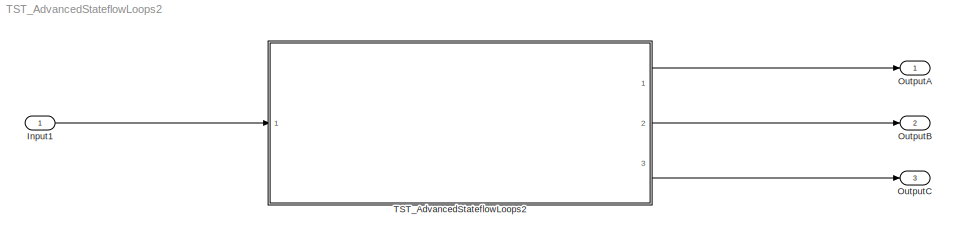
MODEL TST_AdvancedStateflowLoops2
KIND model
BLOCK [Inport] Input1
  BusOutputAsStruct = on
  IconDisplay = Port number
  OutDataTypeStr = uint32
  SID = 23
BLOCK [Outport] OutputA
  IconDisplay = Port number
  OutDataTypeStr = double
  PortDimensions = 1
  SID = 25
BLOCK [Outport] OutputB
  IconDisplay = Port number
  OutDataTypeStr = double
  Port = 2
  PortDimensions = 1
  SID = 32
BLOCK [Outport] OutputC
  IconDisplay = Port number
  OutDataTypeStr = double
  Port = 3
  PortDimensions = 1
  SID = 37
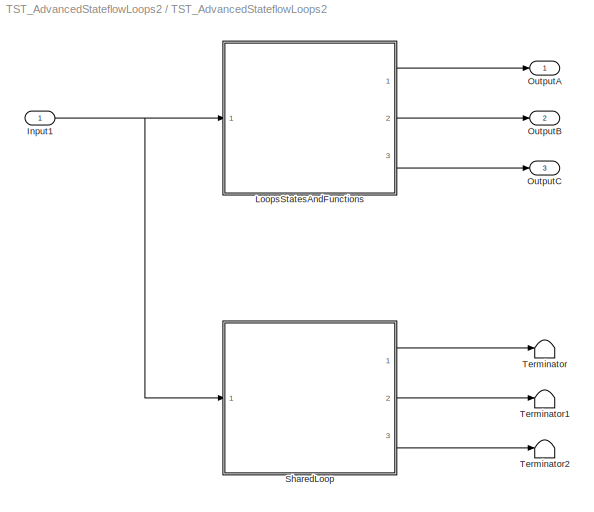
BLOCK [SubSystem] TST_AdvancedStateflowLoops2
  Ports = [1, 3]
  RequestExecContextInheritance = off
  SID = 2
  TreatAsAtomicUnit = on
BLOCK [Inport] TST_AdvancedStateflowLoops2/Input1
  BusOutputAsStruct = on
  IconDisplay = Port number
  OutDataTypeStr = uint32
  SID = 39
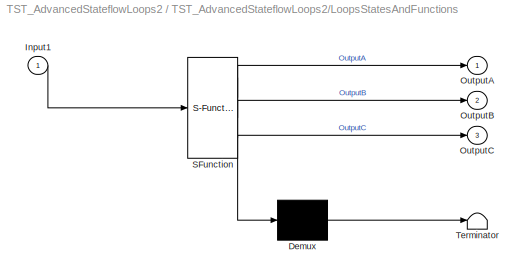
BLOCK [SubSystem] TST_AdvancedStateflowLoops2/LoopsStatesAndFunctions
  ErrorFcn = Stateflow.Translate.translate
  PermitHierarchicalResolution = ExplicitOnly
  Ports = [1, 3]
  RequestExecContextInheritance = off
  SFBlockType = Chart
  SID = 43
  TreatAsAtomicUnit = on
BLOCK [Demux] TST_AdvancedStateflowLoops2/LoopsStatesAndFunctions/ Demux 
  Outputs = 1
  Ports = [1, 1]
  SID = 43::14
BLOCK [S-Function] TST_AdvancedStateflowLoops2/LoopsStatesAndFunctions/ SFunction 
  EnableBusSupport = off
  FunctionName = sf_sfun
  PortCounts = [1 4]
  Ports = [1, 4]
  SFcnIsStateOwnerBlock = off
  SFunctionDeploymentMode = off
  SID = 43::13
  Tag = Stateflow S-Function 1
BLOCK [Terminator] TST_AdvancedStateflowLoops2/LoopsStatesAndFunctions/ Terminator 
  SID = 43::15
BLOCK [Inport] TST_AdvancedStateflowLoops2/LoopsStatesAndFunctions/Input1
  IconDisplay = Port number
  SID = 43::9
BLOCK [Outport] TST_AdvancedStateflowLoops2/LoopsStatesAndFunctions/OutputA
  IconDisplay = Port number
  SID = 43::10
BLOCK [Outport] TST_AdvancedStateflowLoops2/LoopsStatesAndFunctions/OutputB
  IconDisplay = Port number
  Port = 2
  SID = 43::11
BLOCK [Outport] TST_AdvancedStateflowLoops2/LoopsStatesAndFunctions/OutputC
  IconDisplay = Port number
  Port = 3
  SID = 43::12
BLOCK [Outport] TST_AdvancedStateflowLoops2/OutputA
  IconDisplay = Port number
  OutDataTypeStr = double
  PortDimensions = 1
  SID = 40
BLOCK [Outport] TST_AdvancedStateflowLoops2/OutputB
  IconDisplay = Port number
  OutDataTypeStr = double
  Port = 2
  PortDimensions = 1
  SID = 41
BLOCK [Outport] TST_AdvancedStateflowLoops2/OutputC
  IconDisplay = Port number
  OutDataTypeStr = double
  Port = 3
  PortDimensions = 1
  SID = 42
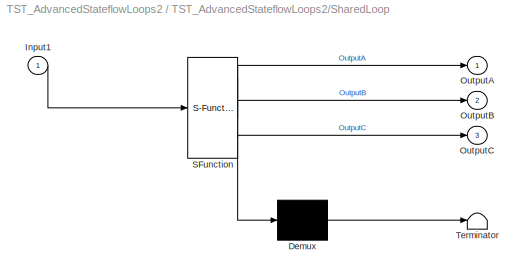
BLOCK [SubSystem] TST_AdvancedStateflowLoops2/SharedLoop
  ErrorFcn = Stateflow.Translate.translate
  PermitHierarchicalResolution = ExplicitOnly
  Ports = [1, 3]
  RequestExecContextInheritance = off
  SFBlockType = Chart
  SID = 48
  TreatAsAtomicUnit = on
BLOCK [Demux] TST_AdvancedStateflowLoops2/SharedLoop/ Demux 
  Outputs = 1
  Ports = [1, 1]
  SID = 48::14
BLOCK [S-Function] TST_AdvancedStateflowLoops2/SharedLoop/ SFunction 
  EnableBusSupport = off
  FunctionName = sf_sfun
  PortCounts = [1 4]
  Ports = [1, 4]
  SFcnIsStateOwnerBlock = off
  SFunctionDeploymentMode = off
  SID = 48::13
  Tag = Stateflow S-Function 2
BLOCK [Terminator] TST_AdvancedStateflowLoops2/SharedLoop/ Terminator 
  SID = 48::15
BLOCK [Inport] TST_AdvancedStateflowLoops2/SharedLoop/Input1
  IconDisplay = Port number
  SID = 48::9
BLOCK [Outport] TST_AdvancedStateflowLoops2/SharedLoop/OutputA
  IconDisplay = Port number
  SID = 48::10
BLOCK [Outport] TST_AdvancedStateflowLoops2/SharedLoop/OutputB
  IconDisplay = Port number
  Port = 2
  SID = 48::11
BLOCK [Outport] TST_AdvancedStateflowLoops2/SharedLoop/OutputC
  IconDisplay = Port number
  Port = 3
  SID = 48::12
BLOCK [Terminator] TST_AdvancedStateflowLoops2/Terminator
  SID = 49
BLOCK [Terminator] TST_AdvancedStateflowLoops2/Terminator1
  SID = 50
BLOCK [Terminator] TST_AdvancedStateflowLoops2/Terminator2
  SID = 51
LINE Input1:1 -> TST_AdvancedStateflowLoops2:1
NET TST_AdvancedStateflowLoops2/Input1:1 -> TST_AdvancedStateflowLoops2/LoopsStatesAndFunctions:1, TST_AdvancedStateflowLoops2/SharedLoop:1
LINE TST_AdvancedStateflowLoops2/LoopsStatesAndFunctions/ Demux :1 -> TST_AdvancedStateflowLoops2/LoopsStatesAndFunctions/ Terminator :1
LINE TST_AdvancedStateflowLoops2/LoopsStatesAndFunctions/ SFunction :1 -> TST_AdvancedStateflowLoops2/LoopsStatesAndFunctions/ Demux :1
LINE TST_AdvancedStateflowLoops2/LoopsStatesAndFunctions/ SFunction :2 -> TST_AdvancedStateflowLoops2/LoopsStatesAndFunctions/OutputA:1
LINE TST_AdvancedStateflowLoops2/LoopsStatesAndFunctions/ SFunction :3 -> TST_AdvancedStateflowLoops2/LoopsStatesAndFunctions/OutputB:1
LINE TST_AdvancedStateflowLoops2/LoopsStatesAndFunctions/ SFunction :4 -> TST_AdvancedStateflowLoops2/LoopsStatesAndFunctions/OutputC:1
LINE TST_AdvancedStateflowLoops2/LoopsStatesAndFunctions/Input1:1 -> TST_AdvancedStateflowLoops2/LoopsStatesAndFunctions/ SFunction :1
LINE TST_AdvancedStateflowLoops2/LoopsStatesAndFunctions:1 -> TST_AdvancedStateflowLoops2/OutputA:1
LINE TST_AdvancedStateflowLoops2/LoopsStatesAndFunctions:2 -> TST_AdvancedStateflowLoops2/OutputB:1
LINE TST_AdvancedStateflowLoops2/LoopsStatesAndFunctions:3 -> TST_AdvancedStateflowLoops2/OutputC:1
LINE TST_AdvancedStateflowLoops2/SharedLoop/ Demux :1 -> TST_AdvancedStateflowLoops2/SharedLoop/ Terminator :1
LINE TST_AdvancedStateflowLoops2/SharedLoop/ SFunction :1 -> TST_AdvancedStateflowLoops2/SharedLoop/ Demux :1
LINE TST_AdvancedStateflowLoops2/SharedLoop/ SFunction :2 -> TST_AdvancedStateflowLoops2/SharedLoop/OutputA:1
LINE TST_AdvancedStateflowLoops2/SharedLoop/ SFunction :3 -> TST_AdvancedStateflowLoops2/SharedLoop/OutputB:1
LINE TST_AdvancedStateflowLoops2/SharedLoop/ SFunction :4 -> TST_AdvancedStateflowLoops2/SharedLoop/OutputC:1
LINE TST_AdvancedStateflowLoops2/SharedLoop/Input1:1 -> TST_AdvancedStateflowLoops2/SharedLoop/ SFunction :1
LINE TST_AdvancedStateflowLoops2/SharedLoop:1 -> TST_AdvancedStateflowLoops2/Terminator:1
LINE TST_AdvancedStateflowLoops2/SharedLoop:2 -> TST_AdvancedStateflowLoops2/Terminator1:1
LINE TST_AdvancedStateflowLoops2/SharedLoop:3 -> TST_AdvancedStateflowLoops2/Terminator2:1
LINE TST_AdvancedStateflowLoops2:1 -> OutputA:1
LINE TST_AdvancedStateflowLoops2:2 -> OutputB:1
LINE TST_AdvancedStateflowLoops2:3 -> OutputC:1
note: NET lines group one-source signal fan-out (src -> all destinations, sorted); 1:1 wires keep LINE
CHART TST_AdvancedStateflowLoops2/LoopsStatesAndFunctions states=8 transitions=15
  STATE_LABEL 'Ping'
  STATE_LABEL 'Pong'
  STATE_LABEL 'PongSubA'
  STATE_LABEL 'PongSubB'
  STATE_LABEL 'x = Iterate(b)'
  STATE_LABEL 'demonstrate a loop inside a state'
  STATE_LABEL 'demonstrate a loop instide a function'
  STATE_LABEL 'demonstrate a loop between states'
CHART TST_AdvancedStateflowLoops2/SharedLoop states=4 transitions=9
  STATE_LABEL 'StateA'
  STATE_LABEL 'StateB'
  STATE_LABEL 'StateC'
  STATE_LABEL 'demonstrate a flowgraph-loop on a joined path\\nwith two different sources'
